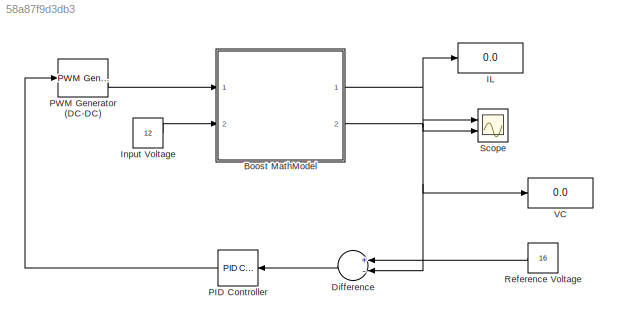
MODEL slx_58a87f9d3db3
KIND model
CONFIG AbsTol = auto
CONFIG EnableMultiTasking = on
CONFIG FixedStep = auto
CONFIG MaxStep = auto
CONFIG MinStep = auto
CONFIG RelTol = 1e-3
CONFIG SampleTimeConstraint = Unconstrained
CONFIG Solver = ode45
CONFIG SolverName = ode45
CONFIG StartTime = 0.0
CONFIG StopTime = 0.2
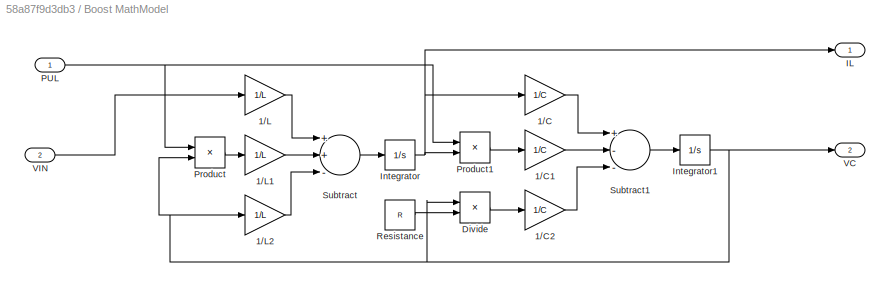
BLOCK [SubSystem] Boost MathModel
  Ports = [2, 2]
  RequestExecContextInheritance = off
BLOCK [Gain] Boost MathModel/1//C
  Gain = 1/C
  OutDataTypeStr = Inherit: Inherit via internal rule
  ParamDataTypeStr = Inherit: Inherit via internal rule
  SaturateOnIntegerOverflow = off
BLOCK [Gain] Boost MathModel/1//C1
  Gain = 1/C
  OutDataTypeStr = Inherit: Inherit via internal rule
  ParamDataTypeStr = Inherit: Inherit via internal rule
  SaturateOnIntegerOverflow = off
BLOCK [Gain] Boost MathModel/1//C2
  Gain = 1/C
  OutDataTypeStr = Inherit: Inherit via internal rule
  ParamDataTypeStr = Inherit: Inherit via internal rule
  SaturateOnIntegerOverflow = off
BLOCK [Gain] Boost MathModel/1//L
  Gain = 1/L
  OutDataTypeStr = Inherit: Inherit via internal rule
  ParamDataTypeStr = Inherit: Inherit via internal rule
  SaturateOnIntegerOverflow = off
BLOCK [Gain] Boost MathModel/1//L1
  Gain = 1/L
  OutDataTypeStr = Inherit: Inherit via internal rule
  ParamDataTypeStr = Inherit: Inherit via internal rule
  SaturateOnIntegerOverflow = off
BLOCK [Gain] Boost MathModel/1//L2
  Gain = 1/L
  OutDataTypeStr = Inherit: Inherit via internal rule
  ParamDataTypeStr = Inherit: Inherit via internal rule
  SaturateOnIntegerOverflow = off
BLOCK [Product] Boost MathModel/Divide
  InputSameDT = off
  Inputs = */
  OutDataTypeStr = Inherit: Inherit via internal rule
  Ports = [2, 1]
  RndMeth = Floor
  SaturateOnIntegerOverflow = off
BLOCK [Outport] Boost MathModel/IL
  IconDisplay = Port number
BLOCK [Integrator] Boost MathModel/Integrator
  Ports = [1, 1]
BLOCK [Integrator] Boost MathModel/Integrator1
  Ports = [1, 1]
BLOCK [Inport] Boost MathModel/PUL
  IconDisplay = Port number
BLOCK [Product] Boost MathModel/Product
  InputSameDT = off
  OutDataTypeStr = Inherit: Inherit via internal rule
  Ports = [2, 1]
  RndMeth = Floor
  SaturateOnIntegerOverflow = off
BLOCK [Product] Boost MathModel/Product1
  InputSameDT = off
  OutDataTypeStr = Inherit: Inherit via internal rule
  Ports = [2, 1]
  RndMeth = Floor
  SaturateOnIntegerOverflow = off
BLOCK [Constant] Boost MathModel/Resistance
  Value = R
BLOCK [Sum] Boost MathModel/Subtract
  InputSameDT = off
  Inputs = ++-
  OutDataTypeStr = Inherit: Inherit via internal rule
  Ports = [3, 1]
  SaturateOnIntegerOverflow = off
BLOCK [Sum] Boost MathModel/Subtract1
  InputSameDT = off
  Inputs = +--
  OutDataTypeStr = Inherit: Inherit via internal rule
  Ports = [3, 1]
  SaturateOnIntegerOverflow = off
BLOCK [Outport] Boost MathModel/VC
  IconDisplay = Port number
  Port = 2
BLOCK [Inport] Boost MathModel/VIN
  IconDisplay = Port number
  Port = 2
BLOCK [Sum] Difference
  InputSameDT = off
  Inputs = +-
  OutDataTypeStr = Inherit: Inherit via internal rule
  Ports = [2, 1]
  SaturateOnIntegerOverflow = off
BLOCK [Display] IL
  Decimation = 1
  Ports = [1]
BLOCK [Constant] Input Voltage
  Value = 12
  VectorParams1D = off
BLOCK [Reference] PID Controller  REF=simulink/Continuous/PID Controller
  Ports = [1, 1]
  SourceBlock = simulink/Continuous/PID Controller
  SourceProductBaseCode = SL
  SourceProductName = Simulink
  SourceType = PID 1dof
BLOCK [Reference] PWM Generator (DC-DC)  REF=powerlib_meascontrol/Pulse & Signal
Generators/PWM Generator
(DC-DC)
  Ports = [1, 1]
  SourceBlock = powerlib_meascontrol/Pulse & Signal\nGenerators/PWM Generator\n(DC-DC)
  SourceProductBaseCode = PS
  SourceProductName = Simscape Electrical
  SourceType = PWM Generator (DC-DC)
BLOCK [Constant] Reference Voltage
  Value = 16
BLOCK [Scope] Scope
  Floating = off
  NumInputPorts = 2
  Ports = [2]
  ScopeSpecificationString = C++SS(StrPVP('Location','[1, 49, 1361, 727]'),StrPVP('Open','off'),MxPVP('AxesTitles',54,'struct(''axes1'',''%<SignalLabel>'',''axes2'',''%<SignalLabel>'')'),MxPVP('ScopeGraphics',57,'struct(''FigureColor'',''[0.501960784313725 0.501960784313725 0.501960784313725]'',''AxesColor'',''[1 1 1]'',''AxesTickColor'',''[0 0 0]'',''LineColors'',''[1 0 0;1 0 0;0 1 1;1 0 0;0 1 0;0 0 1]'',''LineStyles'',''-|-...<+277ch>
BLOCK [Display] VC
  Decimation = 1
  Ports = [1]
LINE Boost MathModel/1//C1:1 -> Boost MathModel/Subtract1:2
LINE Boost MathModel/1//C2:1 -> Boost MathModel/Subtract1:3
LINE Boost MathModel/1//C:1 -> Boost MathModel/Subtract1:1
LINE Boost MathModel/1//L1:1 -> Boost MathModel/Subtract:2
LINE Boost MathModel/1//L2:1 -> Boost MathModel/Subtract:3
LINE Boost MathModel/1//L:1 -> Boost MathModel/Subtract:1
LINE Boost MathModel/Divide:1 -> Boost MathModel/1//C2:1
NET Boost MathModel/Integrator1:1 -> Boost MathModel/1//L2:1, Boost MathModel/Divide:1, Boost MathModel/Product:2, Boost MathModel/VC:1
NET Boost MathModel/Integrator:1 -> Boost MathModel/1//C:1, Boost MathModel/IL:1, Boost MathModel/Product1:2
NET Boost MathModel/PUL:1 -> Boost MathModel/Product1:1, Boost MathModel/Product:1
LINE Boost MathModel/Product1:1 -> Boost MathModel/1//C1:1
LINE Boost MathModel/Product:1 -> Boost MathModel/1//L1:1
LINE Boost MathModel/Resistance:1 -> Boost MathModel/Divide:2
LINE Boost MathModel/Subtract1:1 -> Boost MathModel/Integrator1:1
LINE Boost MathModel/Subtract:1 -> Boost MathModel/Integrator:1
LINE Boost MathModel/VIN:1 -> Boost MathModel/1//L:1
NET Boost MathModel:1 -> IL:1, Scope:1
NET Boost MathModel:2 -> Difference:2, Scope:2, VC:1
LINE Difference:1 -> PID Controller:1
LINE Input Voltage:1 -> Boost MathModel:2
LINE PID Controller:1 -> PWM Generator (DC-DC):1
LINE PWM Generator (DC-DC):1 -> Boost MathModel:1
LINE Reference Voltage:1 -> Difference:1
note: NET lines group one-source signal fan-out (src -> all destinations, sorted); 1:1 wires keep LINE
